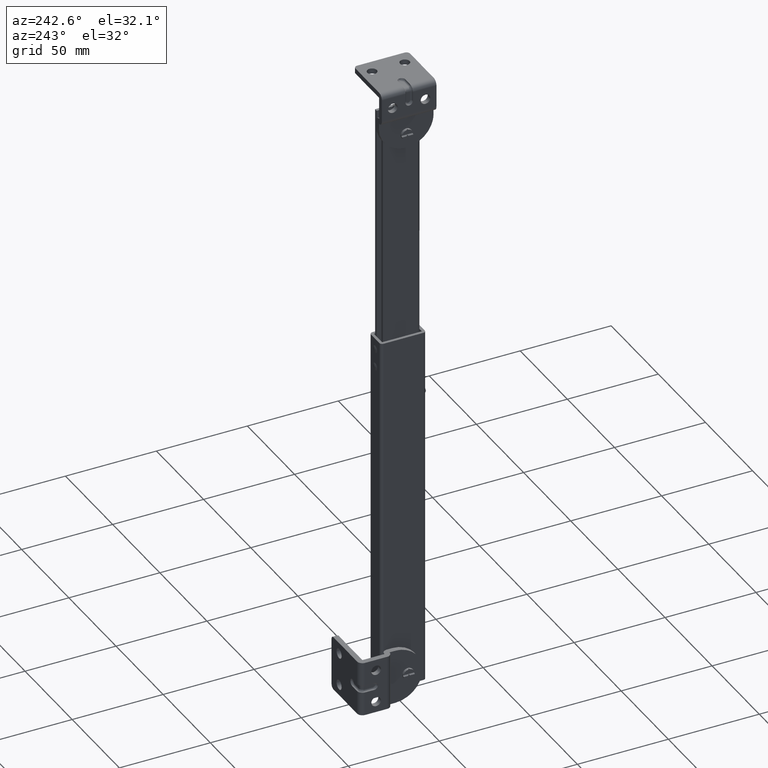
[diagram: clean part render]
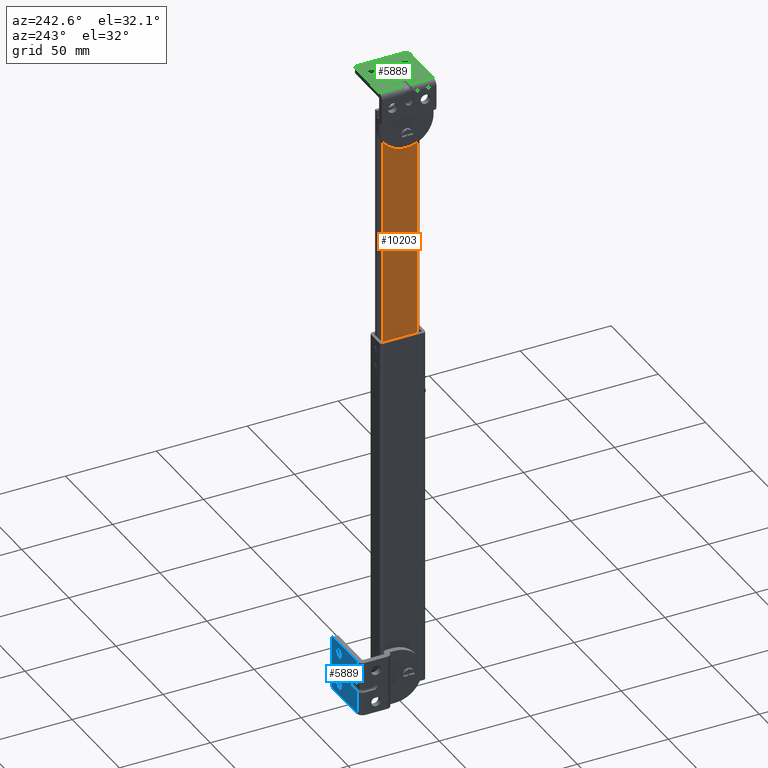
[diagram: same view with three faces highlighted in distinct colors, each labeled with its STEP entity id]
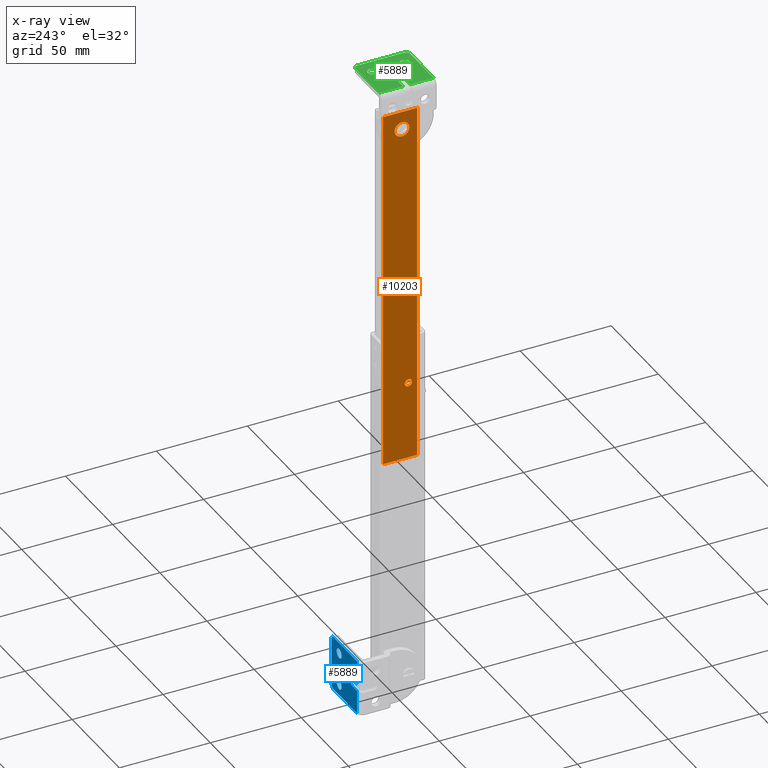
[diagram: x-ray of the same camera — body ghosted, the three highlighted faces saturated]
A machine part, auxiliary view with three faces highlighted in distinct colors.
The next image is the same camera in x-ray (body ghosted, the three faces saturated) — at least one of them is partly hidden behind the body in this view.
Their STEP definitions:

[orange] entity #10203 — the highlighted face is a freeform B-spline surface patch.
#8811=CARTESIAN_POINT('',(-10.399994000000021,-5.498267983088383,163.156918195804910));
#8812=VERTEX_POINT('',#8811);
#8818=CARTESIAN_POINT('',(-10.399994000000021,-3.504433315964420,165.0));
#8819=VERTEX_POINT('',#8818);
#8820=CARTESIAN_POINT('',(-10.399994000000021,-3.504433315964420,165.0));
#8821=CARTESIAN_POINT('',(-10.399994000000021,-5.353214291190228,165.000000000000090));
#8822=CARTESIAN_POINT('',(-10.399994000000017,-5.498267983088383,163.156918195804930));
#8830=(BOUNDED_CURVE()B_SPLINE_CURVE(2,(#8820,#8821,#8822),.UNSPECIFIED.,.F.,.U.)B_SPLINE_CURVE_WITH_KNOTS((3,3),(0.0,0.236331299884894),.UNSPECIFIED.)CURVE()GEOMETRIC_REPRESENTATION_ITEM()RATIONAL_B_SPLINE_CURVE((1.0,0.723120659481384,0.969723354611063))REPRESENTATION_ITEM(''));
#8831=EDGE_CURVE('',#8819,#8812,#8830,.T.);
#8833=CARTESIAN_POINT('',(-10.399994000000021,-1.510598648840457,162.843081804195090));
#8834=VERTEX_POINT('',#8833);
#8835=CARTESIAN_POINT('',(-10.399994000000019,-1.510598648840457,162.843081804195090));
#8836=CARTESIAN_POINT('',(-10.399994000000024,-1.504433315964420,162.921419781615240));
#8837=CARTESIAN_POINT('',(-10.399994000000021,-1.504433315964420,163.0));
#8838=CARTESIAN_POINT('',(-10.399994000000021,-1.504433315964420,165.000000000000090));
#8839=CARTESIAN_POINT('',(-10.399994000000021,-3.504433315964420,165.0));
#8847=(BOUNDED_CURVE()B_SPLINE_CURVE(2,(#8835,#8836,#8837,#8838,#8839),.UNSPECIFIED.,.F.,.U.)B_SPLINE_CURVE_WITH_KNOTS((3,2,3),(0.736331299884895,0.750000000000000,1.0),.UNSPECIFIED.)CURVE()GEOMETRIC_REPRESENTATION_ITEM()RATIONAL_B_SPLINE_CURVE((0.969723354611064,0.983986121705164,1.0,0.707106781186548,1.0))REPRESENTATION_ITEM(''));
#8848=EDGE_CURVE('',#8834,#8819,#8847,.T.);
#8924=CARTESIAN_POINT('',(-10.399994000000021,-3.504433315964420,161.0));
#8925=VERTEX_POINT('',#8924);
#8926=CARTESIAN_POINT('',(-10.399994000000021,-3.504433315964420,161.0));
#8927=CARTESIAN_POINT('',(-10.399994000000021,-1.655652340738599,160.999999999999970));
#8928=CARTESIAN_POINT('',(-10.399994000000024,-1.510598648840457,162.843081804195070));
#8936=(BOUNDED_CURVE()B_SPLINE_CURVE(2,(#8926,#8927,#8928),.UNSPECIFIED.,.F.,.U.)B_SPLINE_CURVE_WITH_KNOTS((3,3),(0.500000000000000,0.736331299884895),.UNSPECIFIED.)CURVE()GEOMETRIC_REPRESENTATION_ITEM()RATIONAL_B_SPLINE_CURVE((1.0,0.723120659481383,0.969723354611065))REPRESENTATION_ITEM(''));
#8937=EDGE_CURVE('',#8925,#8834,#8936,.T.);
#8939=CARTESIAN_POINT('',(-10.399994000000017,-5.498267983088383,163.156918195804930));
#8940=CARTESIAN_POINT('',(-10.399994000000019,-5.504433315964420,163.078580218384730));
#8941=CARTESIAN_POINT('',(-10.399994000000021,-5.504433315964420,163.0));
#8942=CARTESIAN_POINT('',(-10.399994000000021,-5.504433315964420,161.000000000000060));
#8943=CARTESIAN_POINT('',(-10.399994000000021,-3.504433315964420,161.0));
#8951=(BOUNDED_CURVE()B_SPLINE_CURVE(2,(#8939,#8940,#8941,#8942,#8943),.UNSPECIFIED.,.F.,.U.)B_SPLINE_CURVE_WITH_KNOTS((3,2,3),(0.236331299884894,0.250000000000000,0.500000000000000),.UNSPECIFIED.)CURVE()GEOMETRIC_REPRESENTATION_ITEM()RATIONAL_B_SPLINE_CURVE((0.969723354611063,0.983986121705164,1.0,0.707106781186548,1.0))REPRESENTATION_ITEM(''));
#8952=EDGE_CURVE('',#8812,#8925,#8951,.T.);
#9175=CARTESIAN_POINT('',(-10.399994000000021,-3.987669334730024,310.313836385484310));
#9176=VERTEX_POINT('',#9175);
#9182=CARTESIAN_POINT('',(-10.399994000000021,0.0,314.0));
#9183=VERTEX_POINT('',#9182);
#9184=CARTESIAN_POINT('',(-10.399994000000021,0.0,314.0));
#9185=CARTESIAN_POINT('',(-10.399994000000021,-3.697561961846744,313.999999999999940));
#9186=CARTESIAN_POINT('',(-10.399994000000023,-3.987669334730024,310.313836385484190));
#9194=(BOUNDED_CURVE()B_SPLINE_CURVE(2,(#9184,#9185,#9186),.UNSPECIFIED.,.F.,.U.)B_SPLINE_CURVE_WITH_KNOTS((3,3),(0.0,0.236331300411561),.UNSPECIFIED.)CURVE()GEOMETRIC_REPRESENTATION_ITEM()RATIONAL_B_SPLINE_CURVE((1.0,0.723120658864356,0.969723355710175))REPRESENTATION_ITEM(''));
#9195=EDGE_CURVE('',#9183,#9176,#9194,.T.);
#9197=CARTESIAN_POINT('',(-10.399994000000021,3.987669334730023,309.686163614515810));
#9198=VERTEX_POINT('',#9197);
#9199=CARTESIAN_POINT('',(-10.399994000000026,3.987669334730023,309.686163614515750));
#9200=CARTESIAN_POINT('',(-10.399994000000019,4.0,309.842839569384470));
#9201=CARTESIAN_POINT('',(-10.399994000000021,4.0,310.0));
#9202=CARTESIAN_POINT('',(-10.399994000000021,4.000000000000000,313.999999999999940));
#9203=CARTESIAN_POINT('',(-10.399994000000021,0.0,314.0));
#9211=(BOUNDED_CURVE()B_SPLINE_CURVE(2,(#9199,#9200,#9201,#9202,#9203),.UNSPECIFIED.,.F.,.U.)B_SPLINE_CURVE_WITH_KNOTS((3,2,3),(0.736331300411559,0.750000000000000,1.0),.UNSPECIFIED.)CURVE()GEOMETRIC_REPRESENTATION_ITEM()RATIONAL_B_SPLINE_CURVE((0.969723355710172,0.983986122322190,1.0,0.707106781186548,1.0))REPRESENTATION_ITEM(''));
#9212=EDGE_CURVE('',#9198,#9183,#9211,.T.);
#9288=CARTESIAN_POINT('',(-10.399994000000021,0.0,306.0));
#9289=VERTEX_POINT('',#9288);
#9290=CARTESIAN_POINT('',(-10.399994000000021,0.0,306.0));
#9291=CARTESIAN_POINT('',(-10.399994000000021,3.697561961846694,306.000000000000060));
#9292=CARTESIAN_POINT('',(-10.399994000000021,3.987669334730023,309.686163614515750));
#9300=(BOUNDED_CURVE()B_SPLINE_CURVE(2,(#9290,#9291,#9292),.UNSPECIFIED.,.F.,.U.)B_SPLINE_CURVE_WITH_KNOTS((3,3),(0.500000000000000,0.736331300411559),.UNSPECIFIED.)CURVE()GEOMETRIC_REPRESENTATION_ITEM()RATIONAL_B_SPLINE_CURVE((1.0,0.723120658864358,0.969723355710171))REPRESENTATION_ITEM(''));
#9301=EDGE_CURVE('',#9289,#9198,#9300,.T.);
#9303=CARTESIAN_POINT('',(-10.399994000000019,-3.987669334730025,310.313836385484360));
#9304=CARTESIAN_POINT('',(-10.399994000000019,-4.000000000000000,310.157160430615530));
#9305=CARTESIAN_POINT('',(-10.399994000000021,-4.0,310.0));
#9306=CARTESIAN_POINT('',(-10.399994000000021,-4.000000000000000,306.000000000000060));
#9307=CARTESIAN_POINT('',(-10.399994000000021,0.0,306.0));
#9315=(BOUNDED_CURVE()B_SPLINE_CURVE(2,(#9303,#9304,#9305,#9306,#9307),.UNSPECIFIED.,.F.,.U.)B_SPLINE_CURVE_WITH_KNOTS((3,2,3),(0.236331300411561,0.250000000000000,0.500000000000000),.UNSPECIFIED.)CURVE()GEOMETRIC_REPRESENTATION_ITEM()RATIONAL_B_SPLINE_CURVE((0.969723355710175,0.983986122322192,1.0,0.707106781186548,1.0))REPRESENTATION_ITEM(''));
#9316=EDGE_CURVE('',#9176,#9289,#9315,.T.);
#9691=CARTESIAN_POINT('',(-10.399994000000000,-8.400000000000130,320.0));
#9692=VERTEX_POINT('',#9691);
#9706=CARTESIAN_POINT('',(-10.399994000000000,-8.400000000000130,120.0));
#9707=VERTEX_POINT('',#9706);
#9708=CARTESIAN_POINT('',(-10.399994000000000,-8.400000000000130,120.0));
#9709=CARTESIAN_POINT('',(-10.399994000000000,-8.400000000000130,320.0));
#9710=QUASI_UNIFORM_CURVE('',1,(#9708,#9709),.UNSPECIFIED.,.F.,.U.);
#9711=EDGE_CURVE('',#9707,#9692,#9710,.T.);
#9978=CARTESIAN_POINT('',(-10.399994000000021,10.499999999999799,120.0));
#9979=VERTEX_POINT('',#9978);
#9985=CARTESIAN_POINT('',(-10.399994000000021,10.499999999999741,320.0));
#9986=VERTEX_POINT('',#9985);
#9987=CARTESIAN_POINT('',(-10.399994000000021,10.499999999999741,320.0));
#9988=CARTESIAN_POINT('',(-10.399994000000021,10.499999999999799,120.0));
#9989=QUASI_UNIFORM_CURVE('',1,(#9987,#9988),.UNSPECIFIED.,.F.,.U.);
#9990=EDGE_CURVE('',#9986,#9979,#9989,.T.);
#10031=CARTESIAN_POINT('',(-10.399994000000021,10.499999999999799,120.0));
#10032=CARTESIAN_POINT('',(-10.399994000000000,-8.400000000000130,120.0));
#10033=QUASI_UNIFORM_CURVE('',1,(#10031,#10032),.UNSPECIFIED.,.F.,.U.);
#10034=EDGE_CURVE('',#9979,#9707,#10033,.T.);
#10123=CARTESIAN_POINT('',(-10.399994000000000,-8.400000000000130,320.0));
#10124=CARTESIAN_POINT('',(-10.399994000000021,10.499999999999741,320.0));
#10125=QUASI_UNIFORM_CURVE('',1,(#10123,#10124),.UNSPECIFIED.,.F.,.U.);
#10126=EDGE_CURVE('',#9692,#9986,#10125,.T.);
#10180=CARTESIAN_POINT('',(-10.399994000000000,-9.344054608528905,329.989999612361200));
#10181=CARTESIAN_POINT('',(-10.399994000000000,11.444055453424410,329.989999612361200));
#10182=CARTESIAN_POINT('',(-10.399994000000000,-9.344054608528905,110.009995023220800));
#10183=CARTESIAN_POINT('',(-10.399994000000000,11.444055453424410,110.009995023220800));
#10184=B_SPLINE_SURFACE_WITH_KNOTS('',1,1,((#10180,#10182),(#10181,#10183)),.UNSPECIFIED.,.F.,.F.,.U.,(2,2),(2,2),(0.0,20.788110061953319),(0.0,219.980004589140410),.UNSPECIFIED.);
#10185=ORIENTED_EDGE('',*,*,#10034,.T.);
#10186=ORIENTED_EDGE('',*,*,#9711,.T.);
#10187=ORIENTED_EDGE('',*,*,#10126,.T.);
#10188=ORIENTED_EDGE('',*,*,#9990,.T.);
#10189=EDGE_LOOP('',(#10185,#10186,#10187,#10188));
#10190=FACE_OUTER_BOUND('',#10189,.T.);
#10191=ORIENTED_EDGE('',*,*,#9301,.T.);
#10192=ORIENTED_EDGE('',*,*,#9212,.T.);
#10193=ORIENTED_EDGE('',*,*,#9195,.T.);
#10194=ORIENTED_EDGE('',*,*,#9316,.T.);
#10195=EDGE_LOOP('',(#10191,#10192,#10193,#10194));
#10196=FACE_BOUND('',#10195,.T.);
#10197=ORIENTED_EDGE('',*,*,#8937,.T.);
#10198=ORIENTED_EDGE('',*,*,#8848,.T.);
#10199=ORIENTED_EDGE('',*,*,#8831,.T.);
#10200=ORIENTED_EDGE('',*,*,#8952,.T.);
#10201=EDGE_LOOP('',(#10197,#10198,#10199,#10200));
#10202=FACE_BOUND('',#10201,.T.);
#10203=ADVANCED_FACE('',(#10190,#10196,#10202),#10184,.T.);

[blue] entity #5889 — the highlighted face is a freeform B-spline surface patch.
#3204=CARTESIAN_POINT('',(3.687209276773586,6.368524755301031,338.0));
#3205=VERTEX_POINT('',#3204);
#3211=CARTESIAN_POINT('',(6.650000000000000,9.0,338.0));
#3212=VERTEX_POINT('',#3211);
#3213=CARTESIAN_POINT('',(3.687209276773586,6.368524755301031,338.0));
#3214=CARTESIAN_POINT('',(3.843056081521782,6.350000000000000,338.000000000000110));
#3215=CARTESIAN_POINT('',(4.0,6.350000000000000,338.0));
#3216=CARTESIAN_POINT('',(6.649999999999999,6.350000000000000,338.0));
#3217=CARTESIAN_POINT('',(6.650000000000000,9.0,338.0));
#3225=(BOUNDED_CURVE()B_SPLINE_CURVE(2,(#3213,#3214,#3215,#3216,#3217),.UNSPECIFIED.,.F.,.U.)B_SPLINE_CURVE_WITH_KNOTS((3,2,3),(0.229562473337615,0.250000000000000,0.500000000000000),.UNSPECIFIED.)CURVE()GEOMETRIC_REPRESENTATION_ITEM()RATIONAL_B_SPLINE_CURVE((0.956026753838942,0.976055948125074,1.0,0.707106781186548,1.0))REPRESENTATION_ITEM(''));
#3226=EDGE_CURVE('',#3205,#3212,#3225,.T.);
#3228=CARTESIAN_POINT('',(4.161778634929217,11.645057215502231,338.0));
#3229=VERTEX_POINT('',#3228);
#3230=CARTESIAN_POINT('',(6.650000000000000,9.0,338.0));
#3231=CARTESIAN_POINT('',(6.649999999999999,11.492871067552215,337.999999999999940));
#3232=CARTESIAN_POINT('',(4.161778634929217,11.645057215502231,337.999999999999940));
#3240=(BOUNDED_CURVE()B_SPLINE_CURVE(2,(#3230,#3231,#3232),.UNSPECIFIED.,.F.,.U.)B_SPLINE_CURVE_WITH_KNOTS((3,3),(0.500000000000000,0.739332961568517),.UNSPECIFIED.)CURVE()GEOMETRIC_REPRESENTATION_ITEM()RATIONAL_B_SPLINE_CURVE((1.0,0.719603994072163,0.976072040229867))REPRESENTATION_ITEM(''));
#3241=EDGE_CURVE('',#3212,#3229,#3240,.T.);
#3315=CARTESIAN_POINT('',(1.350000000000000,9.0,338.0));
#3316=VERTEX_POINT('',#3315);
#3317=CARTESIAN_POINT('',(4.161778634929218,11.645057215502234,338.000000000000060));
#3318=CARTESIAN_POINT('',(4.080964827917580,11.650000000000004,338.0));
#3319=CARTESIAN_POINT('',(4.0,11.650000000000000,338.0));
#3320=CARTESIAN_POINT('',(1.350000000000000,11.649999999999999,338.0));
#3321=CARTESIAN_POINT('',(1.350000000000000,9.0,338.0));
#3329=(BOUNDED_CURVE()B_SPLINE_CURVE(2,(#3317,#3318,#3319,#3320,#3321),.UNSPECIFIED.,.F.,.U.)B_SPLINE_CURVE_WITH_KNOTS((3,2,3),(0.739332961568516,0.750000000000000,1.0),.UNSPECIFIED.)CURVE()GEOMETRIC_REPRESENTATION_ITEM()RATIONAL_B_SPLINE_CURVE((0.976072040229865,0.987502787114383,1.0,0.707106781186548,1.0))REPRESENTATION_ITEM(''));
#3330=EDGE_CURVE('',#3229,#3316,#3329,.T.);
#3332=CARTESIAN_POINT('',(1.350000000000000,9.0,338.0));
#3333=CARTESIAN_POINT('',(1.350000000000000,6.646337508725687,338.000000000000060));
#3334=CARTESIAN_POINT('',(3.687209276773586,6.368524755301032,338.000000000000060));
#3342=(BOUNDED_CURVE()B_SPLINE_CURVE(2,(#3332,#3333,#3334),.UNSPECIFIED.,.F.,.U.)B_SPLINE_CURVE_WITH_KNOTS((3,3),(0.0,0.229562473337616),.UNSPECIFIED.)CURVE()GEOMETRIC_REPRESENTATION_ITEM()RATIONAL_B_SPLINE_CURVE((1.0,0.731050833061474,0.956026753838942))REPRESENTATION_ITEM(''));
#3343=EDGE_CURVE('',#3316,#3205,#3342,.T.);
#3390=CARTESIAN_POINT('',(3.687209276773586,-11.631475244698970,338.0));
#3391=VERTEX_POINT('',#3390);
#3397=CARTESIAN_POINT('',(6.650000000000000,-9.0,338.0));
#3398=VERTEX_POINT('',#3397);
#3399=CARTESIAN_POINT('',(3.687209276773586,-11.631475244698962,338.0));
#3400=CARTESIAN_POINT('',(3.843056081521781,-11.650000000000000,338.0));
#3401=CARTESIAN_POINT('',(4.0,-11.650000000000000,338.0));
#3402=CARTESIAN_POINT('',(6.649999999999999,-11.649999999999999,338.0));
#3403=CARTESIAN_POINT('',(6.650000000000000,-9.0,338.0));
#3411=(BOUNDED_CURVE()B_SPLINE_CURVE(2,(#3399,#3400,#3401,#3402,#3403),.UNSPECIFIED.,.F.,.U.)B_SPLINE_CURVE_WITH_KNOTS((3,2,3),(0.229562473337615,0.250000000000000,0.500000000000000),.UNSPECIFIED.)CURVE()GEOMETRIC_REPRESENTATION_ITEM()RATIONAL_B_SPLINE_CURVE((0.956026753838942,0.976055948125074,1.0,0.707106781186548,1.0))REPRESENTATION_ITEM(''));
#3412=EDGE_CURVE('',#3391,#3398,#3411,.T.);
#3414=CARTESIAN_POINT('',(4.161778634929217,-6.354942784497765,338.0));
#3415=VERTEX_POINT('',#3414);
#3416=CARTESIAN_POINT('',(6.650000000000000,-9.0,338.0));
#3417=CARTESIAN_POINT('',(6.649999999999999,-6.507128932447784,337.999999999999940));
#3418=CARTESIAN_POINT('',(4.161778634929217,-6.354942784497765,337.999999999999940));
#3426=(BOUNDED_CURVE()B_SPLINE_CURVE(2,(#3416,#3417,#3418),.UNSPECIFIED.,.F.,.U.)B_SPLINE_CURVE_WITH_KNOTS((3,3),(0.500000000000000,0.739332961568517),.UNSPECIFIED.)CURVE()GEOMETRIC_REPRESENTATION_ITEM()RATIONAL_B_SPLINE_CURVE((1.0,0.719603994072163,0.976072040229867))REPRESENTATION_ITEM(''));
#3427=EDGE_CURVE('',#3398,#3415,#3426,.T.);
#3501=CARTESIAN_POINT('',(1.350000000000000,-9.0,338.0));
#3502=VERTEX_POINT('',#3501);
#3503=CARTESIAN_POINT('',(4.161778634929218,-6.354942784497765,338.000000000000060));
#3504=CARTESIAN_POINT('',(4.080964827917580,-6.350000000000001,338.0));
#3505=CARTESIAN_POINT('',(4.0,-6.350000000000000,338.0));
#3506=CARTESIAN_POINT('',(1.350000000000000,-6.350000000000000,338.0));
#3507=CARTESIAN_POINT('',(1.350000000000000,-9.0,338.0));
#3515=(BOUNDED_CURVE()B_SPLINE_CURVE(2,(#3503,#3504,#3505,#3506,#3507),.UNSPECIFIED.,.F.,.U.)B_SPLINE_CURVE_WITH_KNOTS((3,2,3),(0.739332961568516,0.750000000000000,1.0),.UNSPECIFIED.)CURVE()GEOMETRIC_REPRESENTATION_ITEM()RATIONAL_B_SPLINE_CURVE((0.976072040229865,0.987502787114383,1.0,0.707106781186548,1.0))REPRESENTATION_ITEM(''));
#3516=EDGE_CURVE('',#3415,#3502,#3515,.T.);
#3518=CARTESIAN_POINT('',(1.350000000000000,-9.0,338.0));
#3519=CARTESIAN_POINT('',(1.350000000000000,-11.353662491274310,338.000000000000060));
#3520=CARTESIAN_POINT('',(3.687209276773586,-11.631475244698962,338.0));
#3528=(BOUNDED_CURVE()B_SPLINE_CURVE(2,(#3518,#3519,#3520),.UNSPECIFIED.,.F.,.U.)B_SPLINE_CURVE_WITH_KNOTS((3,3),(0.0,0.229562473337616),.UNSPECIFIED.)CURVE()GEOMETRIC_REPRESENTATION_ITEM()RATIONAL_B_SPLINE_CURVE((1.0,0.731050833061474,0.956026753838942))REPRESENTATION_ITEM(''));
#3529=EDGE_CURVE('',#3502,#3391,#3528,.T.);
#4491=CARTESIAN_POINT('',(-9.999994017453281,2.0,338.0));
#4492=VERTEX_POINT('',#4491);
#4500=CARTESIAN_POINT('',(-9.999994017453281,-1.999999999999890,338.0));
#4501=VERTEX_POINT('',#4500);
#4507=CARTESIAN_POINT('',(-9.999994017453281,2.000000000000111,338.0));
#4508=CARTESIAN_POINT('',(-7.999994017453280,2.000000000000112,338.0));
#4509=CARTESIAN_POINT('',(-7.999994017453280,1.110223E-013,338.0));
#4510=CARTESIAN_POINT('',(-7.999994017453280,-1.999999999999889,338.0));
#4511=CARTESIAN_POINT('',(-9.999994017453281,-1.999999999999889,338.0));
#4519=(BOUNDED_CURVE()B_SPLINE_CURVE(2,(#4507,#4508,#4509,#4510,#4511),.UNSPECIFIED.,.F.,.U.)B_SPLINE_CURVE_WITH_KNOTS((3,2,3),(0.0,0.500000000000000,1.0),.UNSPECIFIED.)CURVE()GEOMETRIC_REPRESENTATION_ITEM()RATIONAL_B_SPLINE_CURVE((1.0,0.707106781186548,1.0,0.707106781186548,1.0))REPRESENTATION_ITEM(''));
#4520=EDGE_CURVE('',#4492,#4501,#4519,.T.);
#4586=CARTESIAN_POINT('',(-15.100006000000000,2.0,338.0));
#4587=VERTEX_POINT('',#4586);
#4588=CARTESIAN_POINT('',(-9.999994017453281,2.0,338.0));
#4589=CARTESIAN_POINT('',(-15.100006000000000,2.0,338.0));
#4590=QUASI_UNIFORM_CURVE('',1,(#4588,#4589),.UNSPECIFIED.,.F.,.U.);
#4591=EDGE_CURVE('',#4492,#4587,#4590,.T.);
#4663=CARTESIAN_POINT('',(-15.100006000000000,-1.999999999999890,338.0));
#4664=VERTEX_POINT('',#4663);
#4678=CARTESIAN_POINT('',(-9.999994017453281,-1.999999999999890,338.0));
#4679=CARTESIAN_POINT('',(-15.100006000000000,-1.999999999999890,338.0));
#4680=QUASI_UNIFORM_CURVE('',1,(#4678,#4679),.UNSPECIFIED.,.F.,.U.);
#4681=EDGE_CURVE('',#4501,#4664,#4680,.T.);
#5277=CARTESIAN_POINT('',(12.0,-13.0,338.0));
#5278=VERTEX_POINT('',#5277);
#5284=CARTESIAN_POINT('',(10.0,-15.0,338.0));
#5285=VERTEX_POINT('',#5284);
#5286=CARTESIAN_POINT('',(10.0,-15.0,338.0));
#5287=CARTESIAN_POINT('',(12.0,-14.999999999999995,338.0));
#5288=CARTESIAN_POINT('',(12.0,-13.0,338.0));
#5296=(BOUNDED_CURVE()B_SPLINE_CURVE(2,(#5286,#5287,#5288),.UNSPECIFIED.,.F.,.U.)CURVE()GEOMETRIC_REPRESENTATION_ITEM()QUASI_UNIFORM_CURVE()RATIONAL_B_SPLINE_CURVE((1.0,0.707106781186548,1.0))REPRESENTATION_ITEM(''));
#5297=EDGE_CURVE('',#5285,#5278,#5296,.T.);
#5338=CARTESIAN_POINT('',(10.0,15.0,338.0));
#5339=VERTEX_POINT('',#5338);
#5345=CARTESIAN_POINT('',(12.0,13.0,338.0));
#5346=VERTEX_POINT('',#5345);
#5347=CARTESIAN_POINT('',(12.0,13.0,338.0));
#5348=CARTESIAN_POINT('',(12.0,14.999999999999995,338.0));
#5349=CARTESIAN_POINT('',(10.0,15.0,338.0));
#5357=(BOUNDED_CURVE()B_SPLINE_CURVE(2,(#5347,#5348,#5349),.UNSPECIFIED.,.F.,.U.)CURVE()GEOMETRIC_REPRESENTATION_ITEM()QUASI_UNIFORM_CURVE()RATIONAL_B_SPLINE_CURVE((1.0,0.707106781186548,1.0))REPRESENTATION_ITEM(''));
#5358=EDGE_CURVE('',#5346,#5339,#5357,.T.);
#5450=CARTESIAN_POINT('',(-15.100006000000000,-15.0,338.0));
#5451=VERTEX_POINT('',#5450);
#5452=CARTESIAN_POINT('',(10.0,-15.0,338.0));
#5453=CARTESIAN_POINT('',(-15.100006000000000,-15.0,338.0));
#5454=QUASI_UNIFORM_CURVE('',1,(#5452,#5453),.UNSPECIFIED.,.F.,.U.);
#5455=EDGE_CURVE('',#5285,#5451,#5454,.T.);
#5551=CARTESIAN_POINT('',(-15.100006000000000,15.0,338.0));
#5552=VERTEX_POINT('',#5551);
#5553=CARTESIAN_POINT('',(10.0,15.0,338.0));
#5554=CARTESIAN_POINT('',(-15.100006000000000,15.0,338.0));
#5555=QUASI_UNIFORM_CURVE('',1,(#5553,#5554),.UNSPECIFIED.,.F.,.U.);
#5556=EDGE_CURVE('',#5339,#5552,#5555,.T.);
#5844=CARTESIAN_POINT('',(-15.100006000000000,-1.999999999999890,338.0));
#5845=CARTESIAN_POINT('',(-15.100006000000000,-15.0,338.0));
#5846=QUASI_UNIFORM_CURVE('',1,(#5844,#5845),.UNSPECIFIED.,.F.,.U.);
#5847=EDGE_CURVE('',#4664,#5451,#5846,.T.);
#5852=CARTESIAN_POINT('',(-16.453651501570398,-16.498499941854181,338.0));
#5853=CARTESIAN_POINT('',(13.353645986156270,-16.498499941854181,338.0));
#5854=CARTESIAN_POINT('',(-16.453651501570398,16.498500746516889,338.0));
#5855=CARTESIAN_POINT('',(13.353645986156270,16.498500746516889,338.0));
#5856=B_SPLINE_SURFACE_WITH_KNOTS('',1,1,((#5852,#5854),(#5853,#5855)),.UNSPECIFIED.,.F.,.F.,.U.,(2,2),(2,2),(0.0,29.807297487726661),(0.0,32.997000688371060),.UNSPECIFIED.);
#5857=ORIENTED_EDGE('',*,*,#4591,.F.);
#5858=ORIENTED_EDGE('',*,*,#4520,.T.);
#5859=ORIENTED_EDGE('',*,*,#4681,.T.);
#5860=ORIENTED_EDGE('',*,*,#5847,.T.);
#5861=ORIENTED_EDGE('',*,*,#5455,.F.);
#5862=ORIENTED_EDGE('',*,*,#5297,.T.);
#5863=CARTESIAN_POINT('',(12.0,13.0,338.0));
#5864=CARTESIAN_POINT('',(12.0,-13.0,338.0));
#5865=QUASI_UNIFORM_CURVE('',1,(#5863,#5864),.UNSPECIFIED.,.F.,.U.);
#5866=EDGE_CURVE('',#5346,#5278,#5865,.T.);
#5867=ORIENTED_EDGE('',*,*,#5866,.F.);
#5868=ORIENTED_EDGE('',*,*,#5358,.T.);
#5869=ORIENTED_EDGE('',*,*,#5556,.T.);
#5870=CARTESIAN_POINT('',(-15.100006000000000,15.0,338.0));
#5871=CARTESIAN_POINT('',(-15.100006000000000,2.0,338.0));
#5872=QUASI_UNIFORM_CURVE('',1,(#5870,#5871),.UNSPECIFIED.,.F.,.U.);
#5873=EDGE_CURVE('',#5552,#4587,#5872,.T.);
#5874=ORIENTED_EDGE('',*,*,#5873,.T.);
#5875=EDGE_LOOP('',(#5857,#5858,#5859,#5860,#5861,#5862,#5867,#5868,#5869,#5874));
#5876=FACE_OUTER_BOUND('',#5875,.T.);
#5877=ORIENTED_EDGE('',*,*,#3427,.F.);
#5878=ORIENTED_EDGE('',*,*,#3412,.F.);
#5879=ORIENTED_EDGE('',*,*,#3529,.F.);
#5880=ORIENTED_EDGE('',*,*,#3516,.F.);
#5881=EDGE_LOOP('',(#5877,#5878,#5879,#5880));
#5882=FACE_BOUND('',#5881,.T.);
#5883=ORIENTED_EDGE('',*,*,#3241,.F.);
#5884=ORIENTED_EDGE('',*,*,#3226,.F.);
#5885=ORIENTED_EDGE('',*,*,#3343,.F.);
#5886=ORIENTED_EDGE('',*,*,#3330,.F.);
#5887=EDGE_LOOP('',(#5883,#5884,#5885,#5886));
#5888=FACE_BOUND('',#5887,.T.);
#5889=ADVANCED_FACE('',(#5876,#5882,#5888),#5856,.T.);

[green] entity #5889 — the highlighted face is a freeform B-spline surface patch.
#3204=CARTESIAN_POINT('',(3.687209276773586,6.368524755301031,338.0));
#3205=VERTEX_POINT('',#3204);
#3211=CARTESIAN_POINT('',(6.650000000000000,9.0,338.0));
#3212=VERTEX_POINT('',#3211);
#3213=CARTESIAN_POINT('',(3.687209276773586,6.368524755301031,338.0));
#3214=CARTESIAN_POINT('',(3.843056081521782,6.350000000000000,338.000000000000110));
#3215=CARTESIAN_POINT('',(4.0,6.350000000000000,338.0));
#3216=CARTESIAN_POINT('',(6.649999999999999,6.350000000000000,338.0));
#3217=CARTESIAN_POINT('',(6.650000000000000,9.0,338.0));
#3225=(BOUNDED_CURVE()B_SPLINE_CURVE(2,(#3213,#3214,#3215,#3216,#3217),.UNSPECIFIED.,.F.,.U.)B_SPLINE_CURVE_WITH_KNOTS((3,2,3),(0.229562473337615,0.250000000000000,0.500000000000000),.UNSPECIFIED.)CURVE()GEOMETRIC_REPRESENTATION_ITEM()RATIONAL_B_SPLINE_CURVE((0.956026753838942,0.976055948125074,1.0,0.707106781186548,1.0))REPRESENTATION_ITEM(''));
#3226=EDGE_CURVE('',#3205,#3212,#3225,.T.);
#3228=CARTESIAN_POINT('',(4.161778634929217,11.645057215502231,338.0));
#3229=VERTEX_POINT('',#3228);
#3230=CARTESIAN_POINT('',(6.650000000000000,9.0,338.0));
#3231=CARTESIAN_POINT('',(6.649999999999999,11.492871067552215,337.999999999999940));
#3232=CARTESIAN_POINT('',(4.161778634929217,11.645057215502231,337.999999999999940));
#3240=(BOUNDED_CURVE()B_SPLINE_CURVE(2,(#3230,#3231,#3232),.UNSPECIFIED.,.F.,.U.)B_SPLINE_CURVE_WITH_KNOTS((3,3),(0.500000000000000,0.739332961568517),.UNSPECIFIED.)CURVE()GEOMETRIC_REPRESENTATION_ITEM()RATIONAL_B_SPLINE_CURVE((1.0,0.719603994072163,0.976072040229867))REPRESENTATION_ITEM(''));
#3241=EDGE_CURVE('',#3212,#3229,#3240,.T.);
#3315=CARTESIAN_POINT('',(1.350000000000000,9.0,338.0));
#3316=VERTEX_POINT('',#3315);
#3317=CARTESIAN_POINT('',(4.161778634929218,11.645057215502234,338.000000000000060));
#3318=CARTESIAN_POINT('',(4.080964827917580,11.650000000000004,338.0));
#3319=CARTESIAN_POINT('',(4.0,11.650000000000000,338.0));
#3320=CARTESIAN_POINT('',(1.350000000000000,11.649999999999999,338.0));
#3321=CARTESIAN_POINT('',(1.350000000000000,9.0,338.0));
#3329=(BOUNDED_CURVE()B_SPLINE_CURVE(2,(#3317,#3318,#3319,#3320,#3321),.UNSPECIFIED.,.F.,.U.)B_SPLINE_CURVE_WITH_KNOTS((3,2,3),(0.739332961568516,0.750000000000000,1.0),.UNSPECIFIED.)CURVE()GEOMETRIC_REPRESENTATION_ITEM()RATIONAL_B_SPLINE_CURVE((0.976072040229865,0.987502787114383,1.0,0.707106781186548,1.0))REPRESENTATION_ITEM(''));
#3330=EDGE_CURVE('',#3229,#3316,#3329,.T.);
#3332=CARTESIAN_POINT('',(1.350000000000000,9.0,338.0));
#3333=CARTESIAN_POINT('',(1.350000000000000,6.646337508725687,338.000000000000060));
#3334=CARTESIAN_POINT('',(3.687209276773586,6.368524755301032,338.000000000000060));
#3342=(BOUNDED_CURVE()B_SPLINE_CURVE(2,(#3332,#3333,#3334),.UNSPECIFIED.,.F.,.U.)B_SPLINE_CURVE_WITH_KNOTS((3,3),(0.0,0.229562473337616),.UNSPECIFIED.)CURVE()GEOMETRIC_REPRESENTATION_ITEM()RATIONAL_B_SPLINE_CURVE((1.0,0.731050833061474,0.956026753838942))REPRESENTATION_ITEM(''));
#3343=EDGE_CURVE('',#3316,#3205,#3342,.T.);
#3390=CARTESIAN_POINT('',(3.687209276773586,-11.631475244698970,338.0));
#3391=VERTEX_POINT('',#3390);
#3397=CARTESIAN_POINT('',(6.650000000000000,-9.0,338.0));
#3398=VERTEX_POINT('',#3397);
#3399=CARTESIAN_POINT('',(3.687209276773586,-11.631475244698962,338.0));
#3400=CARTESIAN_POINT('',(3.843056081521781,-11.650000000000000,338.0));
#3401=CARTESIAN_POINT('',(4.0,-11.650000000000000,338.0));
#3402=CARTESIAN_POINT('',(6.649999999999999,-11.649999999999999,338.0));
#3403=CARTESIAN_POINT('',(6.650000000000000,-9.0,338.0));
#3411=(BOUNDED_CURVE()B_SPLINE_CURVE(2,(#3399,#3400,#3401,#3402,#3403),.UNSPECIFIED.,.F.,.U.)B_SPLINE_CURVE_WITH_KNOTS((3,2,3),(0.229562473337615,0.250000000000000,0.500000000000000),.UNSPECIFIED.)CURVE()GEOMETRIC_REPRESENTATION_ITEM()RATIONAL_B_SPLINE_CURVE((0.956026753838942,0.976055948125074,1.0,0.707106781186548,1.0))REPRESENTATION_ITEM(''));
#3412=EDGE_CURVE('',#3391,#3398,#3411,.T.);
#3414=CARTESIAN_POINT('',(4.161778634929217,-6.354942784497765,338.0));
#3415=VERTEX_POINT('',#3414);
#3416=CARTESIAN_POINT('',(6.650000000000000,-9.0,338.0));
#3417=CARTESIAN_POINT('',(6.649999999999999,-6.507128932447784,337.999999999999940));
#3418=CARTESIAN_POINT('',(4.161778634929217,-6.354942784497765,337.999999999999940));
#3426=(BOUNDED_CURVE()B_SPLINE_CURVE(2,(#3416,#3417,#3418),.UNSPECIFIED.,.F.,.U.)B_SPLINE_CURVE_WITH_KNOTS((3,3),(0.500000000000000,0.739332961568517),.UNSPECIFIED.)CURVE()GEOMETRIC_REPRESENTATION_ITEM()RATIONAL_B_SPLINE_CURVE((1.0,0.719603994072163,0.976072040229867))REPRESENTATION_ITEM(''));
#3427=EDGE_CURVE('',#3398,#3415,#3426,.T.);
#3501=CARTESIAN_POINT('',(1.350000000000000,-9.0,338.0));
#3502=VERTEX_POINT('',#3501);
#3503=CARTESIAN_POINT('',(4.161778634929218,-6.354942784497765,338.000000000000060));
#3504=CARTESIAN_POINT('',(4.080964827917580,-6.350000000000001,338.0));
#3505=CARTESIAN_POINT('',(4.0,-6.350000000000000,338.0));
#3506=CARTESIAN_POINT('',(1.350000000000000,-6.350000000000000,338.0));
#3507=CARTESIAN_POINT('',(1.350000000000000,-9.0,338.0));
#3515=(BOUNDED_CURVE()B_SPLINE_CURVE(2,(#3503,#3504,#3505,#3506,#3507),.UNSPECIFIED.,.F.,.U.)B_SPLINE_CURVE_WITH_KNOTS((3,2,3),(0.739332961568516,0.750000000000000,1.0),.UNSPECIFIED.)CURVE()GEOMETRIC_REPRESENTATION_ITEM()RATIONAL_B_SPLINE_CURVE((0.976072040229865,0.987502787114383,1.0,0.707106781186548,1.0))REPRESENTATION_ITEM(''));
#3516=EDGE_CURVE('',#3415,#3502,#3515,.T.);
#3518=CARTESIAN_POINT('',(1.350000000000000,-9.0,338.0));
#3519=CARTESIAN_POINT('',(1.350000000000000,-11.353662491274310,338.000000000000060));
#3520=CARTESIAN_POINT('',(3.687209276773586,-11.631475244698962,338.0));
#3528=(BOUNDED_CURVE()B_SPLINE_CURVE(2,(#3518,#3519,#3520),.UNSPECIFIED.,.F.,.U.)B_SPLINE_CURVE_WITH_KNOTS((3,3),(0.0,0.229562473337616),.UNSPECIFIED.)CURVE()GEOMETRIC_REPRESENTATION_ITEM()RATIONAL_B_SPLINE_CURVE((1.0,0.731050833061474,0.956026753838942))REPRESENTATION_ITEM(''));
#3529=EDGE_CURVE('',#3502,#3391,#3528,.T.);
#4491=CARTESIAN_POINT('',(-9.999994017453281,2.0,338.0));
#4492=VERTEX_POINT('',#4491);
#4500=CARTESIAN_POINT('',(-9.999994017453281,-1.999999999999890,338.0));
#4501=VERTEX_POINT('',#4500);
#4507=CARTESIAN_POINT('',(-9.999994017453281,2.000000000000111,338.0));
#4508=CARTESIAN_POINT('',(-7.999994017453280,2.000000000000112,338.0));
#4509=CARTESIAN_POINT('',(-7.999994017453280,1.110223E-013,338.0));
#4510=CARTESIAN_POINT('',(-7.999994017453280,-1.999999999999889,338.0));
#4511=CARTESIAN_POINT('',(-9.999994017453281,-1.999999999999889,338.0));
#4519=(BOUNDED_CURVE()B_SPLINE_CURVE(2,(#4507,#4508,#4509,#4510,#4511),.UNSPECIFIED.,.F.,.U.)B_SPLINE_CURVE_WITH_KNOTS((3,2,3),(0.0,0.500000000000000,1.0),.UNSPECIFIED.)CURVE()GEOMETRIC_REPRESENTATION_ITEM()RATIONAL_B_SPLINE_CURVE((1.0,0.707106781186548,1.0,0.707106781186548,1.0))REPRESENTATION_ITEM(''));
#4520=EDGE_CURVE('',#4492,#4501,#4519,.T.);
#4586=CARTESIAN_POINT('',(-15.100006000000000,2.0,338.0));
#4587=VERTEX_POINT('',#4586);
#4588=CARTESIAN_POINT('',(-9.999994017453281,2.0,338.0));
#4589=CARTESIAN_POINT('',(-15.100006000000000,2.0,338.0));
#4590=QUASI_UNIFORM_CURVE('',1,(#4588,#4589),.UNSPECIFIED.,.F.,.U.);
#4591=EDGE_CURVE('',#4492,#4587,#4590,.T.);
#4663=CARTESIAN_POINT('',(-15.100006000000000,-1.999999999999890,338.0));
#4664=VERTEX_POINT('',#4663);
#4678=CARTESIAN_POINT('',(-9.999994017453281,-1.999999999999890,338.0));
#4679=CARTESIAN_POINT('',(-15.100006000000000,-1.999999999999890,338.0));
#4680=QUASI_UNIFORM_CURVE('',1,(#4678,#4679),.UNSPECIFIED.,.F.,.U.);
#4681=EDGE_CURVE('',#4501,#4664,#4680,.T.);
#5277=CARTESIAN_POINT('',(12.0,-13.0,338.0));
#5278=VERTEX_POINT('',#5277);
#5284=CARTESIAN_POINT('',(10.0,-15.0,338.0));
#5285=VERTEX_POINT('',#5284);
#5286=CARTESIAN_POINT('',(10.0,-15.0,338.0));
#5287=CARTESIAN_POINT('',(12.0,-14.999999999999995,338.0));
#5288=CARTESIAN_POINT('',(12.0,-13.0,338.0));
#5296=(BOUNDED_CURVE()B_SPLINE_CURVE(2,(#5286,#5287,#5288),.UNSPECIFIED.,.F.,.U.)CURVE()GEOMETRIC_REPRESENTATION_ITEM()QUASI_UNIFORM_CURVE()RATIONAL_B_SPLINE_CURVE((1.0,0.707106781186548,1.0))REPRESENTATION_ITEM(''));
#5297=EDGE_CURVE('',#5285,#5278,#5296,.T.);
#5338=CARTESIAN_POINT('',(10.0,15.0,338.0));
#5339=VERTEX_POINT('',#5338);
#5345=CARTESIAN_POINT('',(12.0,13.0,338.0));
#5346=VERTEX_POINT('',#5345);
#5347=CARTESIAN_POINT('',(12.0,13.0,338.0));
#5348=CARTESIAN_POINT('',(12.0,14.999999999999995,338.0));
#5349=CARTESIAN_POINT('',(10.0,15.0,338.0));
#5357=(BOUNDED_CURVE()B_SPLINE_CURVE(2,(#5347,#5348,#5349),.UNSPECIFIED.,.F.,.U.)CURVE()GEOMETRIC_REPRESENTATION_ITEM()QUASI_UNIFORM_CURVE()RATIONAL_B_SPLINE_CURVE((1.0,0.707106781186548,1.0))REPRESENTATION_ITEM(''));
#5358=EDGE_CURVE('',#5346,#5339,#5357,.T.);
#5450=CARTESIAN_POINT('',(-15.100006000000000,-15.0,338.0));
#5451=VERTEX_POINT('',#5450);
#5452=CARTESIAN_POINT('',(10.0,-15.0,338.0));
#5453=CARTESIAN_POINT('',(-15.100006000000000,-15.0,338.0));
#5454=QUASI_UNIFORM_CURVE('',1,(#5452,#5453),.UNSPECIFIED.,.F.,.U.);
#5455=EDGE_CURVE('',#5285,#5451,#5454,.T.);
#5551=CARTESIAN_POINT('',(-15.100006000000000,15.0,338.0));
#5552=VERTEX_POINT('',#5551);
#5553=CARTESIAN_POINT('',(10.0,15.0,338.0));
#5554=CARTESIAN_POINT('',(-15.100006000000000,15.0,338.0));
#5555=QUASI_UNIFORM_CURVE('',1,(#5553,#5554),.UNSPECIFIED.,.F.,.U.);
#5556=EDGE_CURVE('',#5339,#5552,#5555,.T.);
#5844=CARTESIAN_POINT('',(-15.100006000000000,-1.999999999999890,338.0));
#5845=CARTESIAN_POINT('',(-15.100006000000000,-15.0,338.0));
#5846=QUASI_UNIFORM_CURVE('',1,(#5844,#5845),.UNSPECIFIED.,.F.,.U.);
#5847=EDGE_CURVE('',#4664,#5451,#5846,.T.);
#5852=CARTESIAN_POINT('',(-16.453651501570398,-16.498499941854181,338.0));
#5853=CARTESIAN_POINT('',(13.353645986156270,-16.498499941854181,338.0));
#5854=CARTESIAN_POINT('',(-16.453651501570398,16.498500746516889,338.0));
#5855=CARTESIAN_POINT('',(13.353645986156270,16.498500746516889,338.0));
#5856=B_SPLINE_SURFACE_WITH_KNOTS('',1,1,((#5852,#5854),(#5853,#5855)),.UNSPECIFIED.,.F.,.F.,.U.,(2,2),(2,2),(0.0,29.807297487726661),(0.0,32.997000688371060),.UNSPECIFIED.);
#5857=ORIENTED_EDGE('',*,*,#4591,.F.);
#5858=ORIENTED_EDGE('',*,*,#4520,.T.);
#5859=ORIENTED_EDGE('',*,*,#4681,.T.);
#5860=ORIENTED_EDGE('',*,*,#5847,.T.);
#5861=ORIENTED_EDGE('',*,*,#5455,.F.);
#5862=ORIENTED_EDGE('',*,*,#5297,.T.);
#5863=CARTESIAN_POINT('',(12.0,13.0,338.0));
#5864=CARTESIAN_POINT('',(12.0,-13.0,338.0));
#5865=QUASI_UNIFORM_CURVE('',1,(#5863,#5864),.UNSPECIFIED.,.F.,.U.);
#5866=EDGE_CURVE('',#5346,#5278,#5865,.T.);
#5867=ORIENTED_EDGE('',*,*,#5866,.F.);
#5868=ORIENTED_EDGE('',*,*,#5358,.T.);
#5869=ORIENTED_EDGE('',*,*,#5556,.T.);
#5870=CARTESIAN_POINT('',(-15.100006000000000,15.0,338.0));
#5871=CARTESIAN_POINT('',(-15.100006000000000,2.0,338.0));
#5872=QUASI_UNIFORM_CURVE('',1,(#5870,#5871),.UNSPECIFIED.,.F.,.U.);
#5873=EDGE_CURVE('',#5552,#4587,#5872,.T.);
#5874=ORIENTED_EDGE('',*,*,#5873,.T.);
#5875=EDGE_LOOP('',(#5857,#5858,#5859,#5860,#5861,#5862,#5867,#5868,#5869,#5874));
#5876=FACE_OUTER_BOUND('',#5875,.T.);
#5877=ORIENTED_EDGE('',*,*,#3427,.F.);
#5878=ORIENTED_EDGE('',*,*,#3412,.F.);
#5879=ORIENTED_EDGE('',*,*,#3529,.F.);
#5880=ORIENTED_EDGE('',*,*,#3516,.F.);
#5881=EDGE_LOOP('',(#5877,#5878,#5879,#5880));
#5882=FACE_BOUND('',#5881,.T.);
#5883=ORIENTED_EDGE('',*,*,#3241,.F.);
#5884=ORIENTED_EDGE('',*,*,#3226,.F.);
#5885=ORIENTED_EDGE('',*,*,#3343,.F.);
#5886=ORIENTED_EDGE('',*,*,#3330,.F.);
#5887=EDGE_LOOP('',(#5883,#5884,#5885,#5886));
#5888=FACE_BOUND('',#5887,.T.);
#5889=ADVANCED_FACE('',(#5876,#5882,#5888),#5856,.T.);